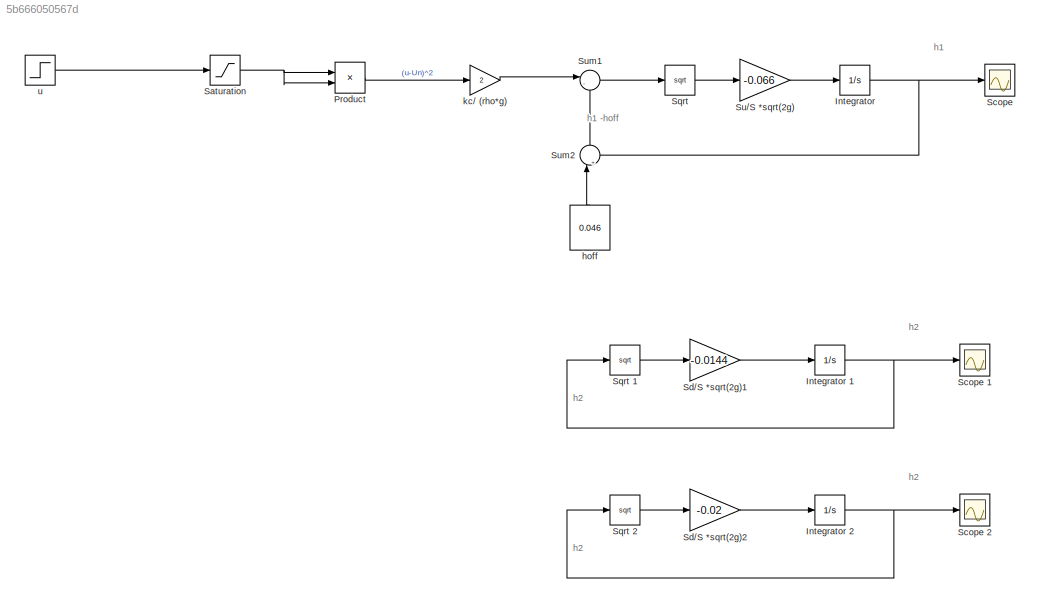
MODEL slx_5b666050567d
KIND model
CONFIG AbsTol = auto
CONFIG EnableMultiTasking = off
CONFIG FixedStep = auto
CONFIG MaxStep = auto
CONFIG MinStep = auto
CONFIG RelTol = 1e-3
CONFIG SampleTimeConstraint = Unconstrained
CONFIG Solver = VariableStepAuto
CONFIG SolverName = VariableStepAuto
CONFIG StartTime = 0.0
CONFIG StopTime = 57
BLOCK [Constant]  hoff
  Value = 0.046
BLOCK [Integrator] Integrator 
  InitialCondition = 0.1582
  Ports = [1, 1]
BLOCK [Integrator] Integrator 1
  InitialCondition = 0.14
  Ports = [1, 1]
BLOCK [Integrator] Integrator 2
  InitialCondition = 0.146
  Ports = [1, 1]
BLOCK [Product] Product 
  InputSameDT = off
  OutDataTypeStr = Inherit: Inherit via internal rule
  Ports = [2, 1]
  RndMeth = Floor
  SaturateOnIntegerOverflow = off
BLOCK [Saturate] Saturation 
  InputPortMap = u0
  LowerLimit = 0.05
  Ports = [1, 1]
  UpperLimit = 1
BLOCK [Scope] Scope 
  NumInputPorts = 1
  Ports = [1]
  ScopeSpecificationString = Simulink.scopes.TimeScopeBlockCfg('CurrentConfiguration', extmgr.ConfigurationSet(extmgr.Configuration('Core','General UI',true),extmgr.Configuration('Core','Source UI',true),extmgr.Configuration('Sources','WiredSimulink',true,'DataLogging',true,'DataLoggingVariableName','h1_sim','DataLoggingSaveFormat','Array','SampleTime','0.0142'),extmgr.Configuration('Visuals','Time Domain',true,'SerializedDis...<+1512ch>
BLOCK [Scope] Scope 1
  NumInputPorts = 1
  Ports = [1]
  ScopeSpecificationString = Simulink.scopes.TimeScopeBlockCfg('CurrentConfiguration', extmgr.ConfigurationSet(extmgr.Configuration('Core','General UI',true),extmgr.Configuration('Core','Source UI',true),extmgr.Configuration('Sources','WiredSimulink',true,'DataLoggingVariableName','h2_nolinear','DataLogging',true,'DataLoggingSaveFormat','Array','SampleTime','0.1222'),extmgr.Configuration('Visuals','Time Domain',true,'Serializ...<+1491ch>
BLOCK [Scope] Scope 2
  NumInputPorts = 1
  Ports = [1]
  ScopeSpecificationString = Simulink.scopes.TimeScopeBlockCfg('CurrentConfiguration', extmgr.ConfigurationSet(extmgr.Configuration('Core','General UI',true),extmgr.Configuration('Core','Source UI',true),extmgr.Configuration('Sources','WiredSimulink',true,'DataLoggingVariableName','h2_nolinear2','DataLogging',true,'DataLoggingSaveFormat','Array','SampleTime','0.1222'),extmgr.Configuration('Visuals','Time Domain',true,'Seriali...<+1499ch>
BLOCK [Gain] Sd//S *sqrt(2g)1
  Gain = -0.0144
  OutDataTypeStr = Inherit: Inherit via internal rule
  ParamDataTypeStr = Inherit: Inherit via internal rule
  SaturateOnIntegerOverflow = off
BLOCK [Gain] Sd//S *sqrt(2g)2
  Gain = -0.02
  OutDataTypeStr = Inherit: Inherit via internal rule
  ParamDataTypeStr = Inherit: Inherit via internal rule
  SaturateOnIntegerOverflow = off
BLOCK [Sqrt] Sqrt 
BLOCK [Sqrt] Sqrt 1
BLOCK [Sqrt] Sqrt 2
BLOCK [Gain] Su//S *sqrt(2g)
  Gain = -0.066
  OutDataTypeStr = Inherit: Inherit via internal rule
  ParamDataTypeStr = Inherit: Inherit via internal rule
  SaturateOnIntegerOverflow = off
BLOCK [Sum] Sum1
  IconShape = round
  InputSameDT = off
  Inputs = |-+
  OutDataTypeStr = Inherit: Inherit via internal rule
  Ports = [2, 1]
  SaturateOnIntegerOverflow = off
BLOCK [Sum] Sum2
  IconShape = round
  InputSameDT = off
  Inputs = |++
  OutDataTypeStr = Inherit: Inherit via internal rule
  Ports = [2, 1]
  SaturateOnIntegerOverflow = off
BLOCK [Gain] kc// (rho*g)
  Gain = 2
  OutDataTypeStr = Inherit: Inherit via internal rule
  ParamDataTypeStr = Inherit: Inherit via internal rule
  SaturateOnIntegerOverflow = off
BLOCK [Step] u
  After = 0
  SampleTime = 0
ANNOTATION (root): h1
ANNOTATION (root): h1 -hoff
ANNOTATION (root): h2
LINE  hoff:1 -> Sum2:1
NET Integrator 1:1 -> Scope 1:1, Sqrt 1:1
NET Integrator 2:1 -> Scope 2:1, Sqrt 2:1
NET Integrator :1 -> Scope :1, Sum2:2
LINE Product :1 -> kc// (rho*g):1
NET Saturation :1 -> Product :1, Product :2
LINE Sd//S *sqrt(2g)1:1 -> Integrator 1:1
LINE Sd//S *sqrt(2g)2:1 -> Integrator 2:1
LINE Sqrt 1:1 -> Sd//S *sqrt(2g)1:1
LINE Sqrt 2:1 -> Sd//S *sqrt(2g)2:1
LINE Sqrt :1 -> Su//S *sqrt(2g):1
LINE Su//S *sqrt(2g):1 -> Integrator :1
LINE Sum1:1 -> Sqrt :1
LINE Sum2:1 -> Sum1:2
LINE kc// (rho*g):1 -> Sum1:1
LINE u:1 -> Saturation :1
note: NET lines group one-source signal fan-out (src -> all destinations, sorted); 1:1 wires keep LINE
